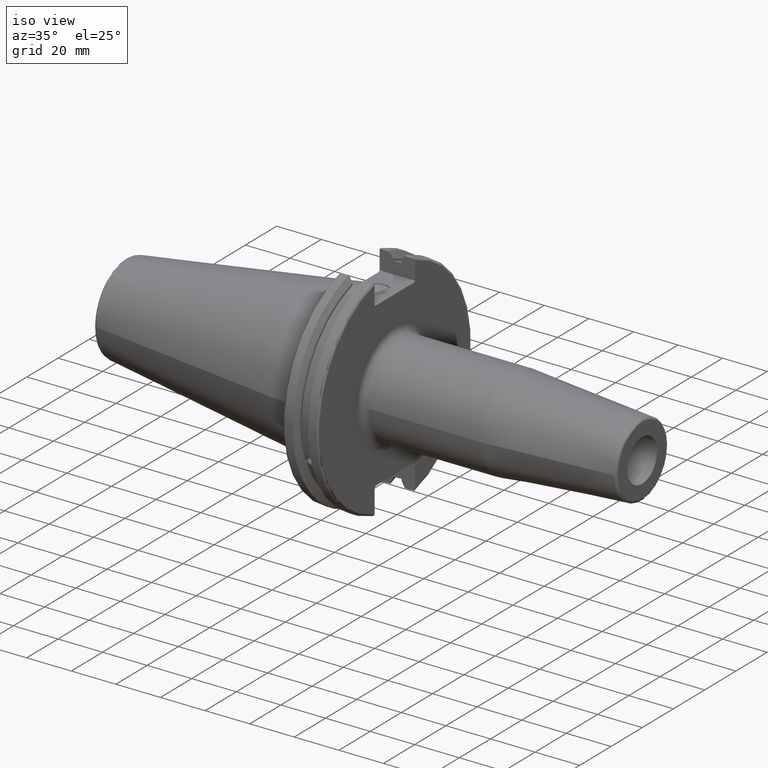
[diagram: clean part render]
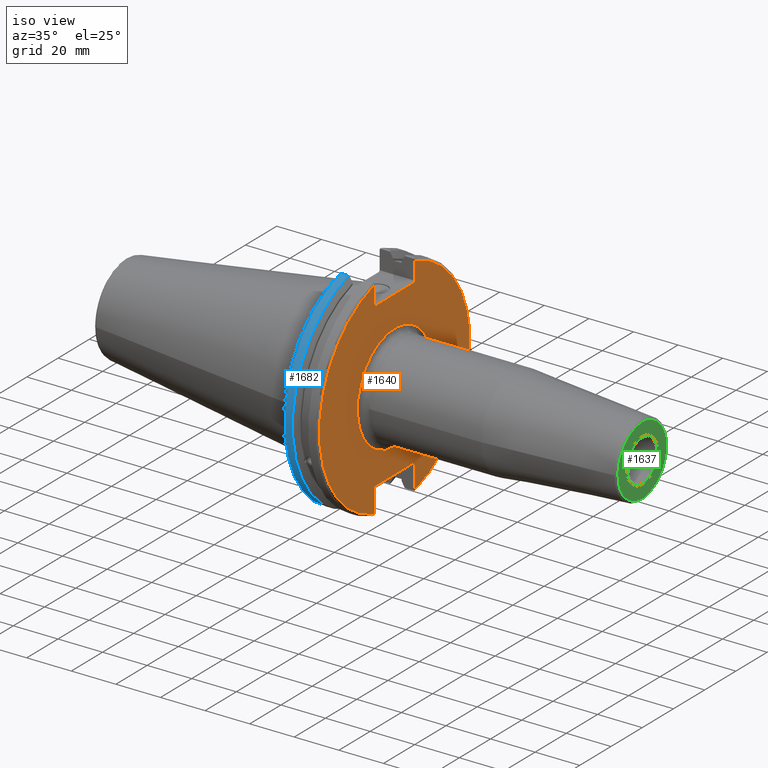
[diagram: same view with three faces highlighted in distinct colors, each labeled with its STEP entity id]
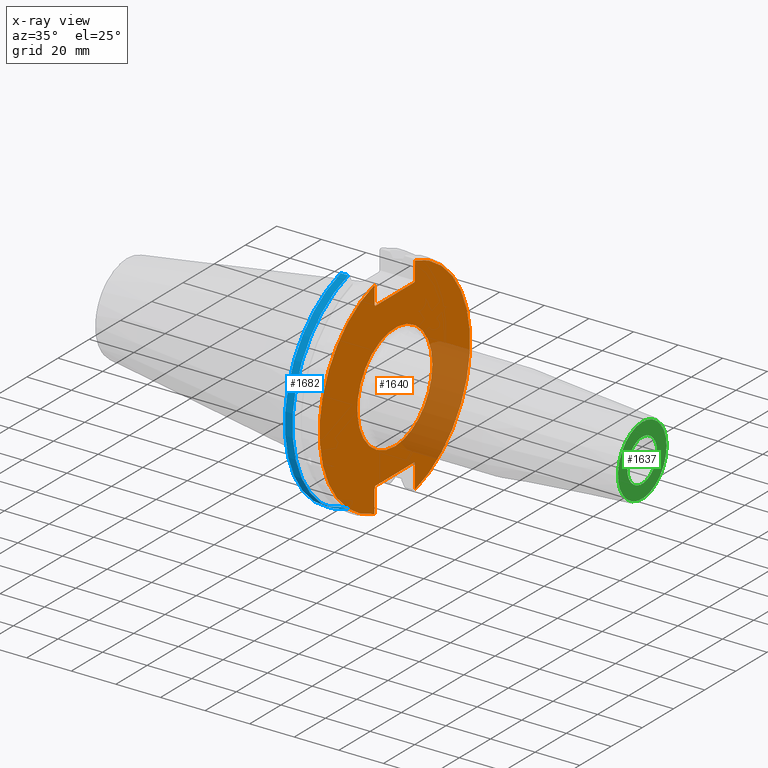
[diagram: x-ray of the same camera — body ghosted, the three highlighted faces saturated]
A machine part, iso view with three faces highlighted in distinct colors.
The next image is the same camera in x-ray (body ghosted, the three faces saturated) — at least one of them is partly hidden behind the body in this view.
Their STEP definitions:

[orange] entity #1640 — the highlighted planar face has unit normal (1, 0, 0).
#34=PLANE('',#1773);
#95=FACE_BOUND('',#251,.T.);
#160=FACE_OUTER_BOUND('',#250,.T.);
#250=EDGE_LOOP('',(#1147,#1148,#1149,#1150,#1151,#1152,#1153,#1154,#1155,
#1156,#1157,#1158));
#251=EDGE_LOOP('',(#1159,#1160));
#351=LINE('',#2576,#445);
#352=LINE('',#2578,#446);
#353=LINE('',#2580,#447);
#354=LINE('',#2582,#448);
#355=LINE('',#2584,#449);
#356=LINE('',#2588,#450);
#357=LINE('',#2590,#451);
#358=LINE('',#2592,#452);
#359=LINE('',#2594,#453);
#360=LINE('',#2595,#454);
#445=VECTOR('',#2020,10.);
#446=VECTOR('',#2021,10.);
#447=VECTOR('',#2022,10.);
#448=VECTOR('',#2023,10.);
#449=VECTOR('',#2024,10.);
#450=VECTOR('',#2027,10.);
#451=VECTOR('',#2028,10.);
#452=VECTOR('',#2029,10.);
#453=VECTOR('',#2030,10.);
#454=VECTOR('',#2031,10.);
#554=CIRCLE('',#1768,24.);
#555=CIRCLE('',#1769,24.);
#558=CIRCLE('',#1774,48.2125);
#559=CIRCLE('',#1775,48.2125);
#666=VERTEX_POINT('',#2561);
#667=VERTEX_POINT('',#2563);
#669=VERTEX_POINT('',#2572);
#670=VERTEX_POINT('',#2573);
#671=VERTEX_POINT('',#2575);
#672=VERTEX_POINT('',#2577);
#673=VERTEX_POINT('',#2579);
#674=VERTEX_POINT('',#2581);
#675=VERTEX_POINT('',#2583);
#676=VERTEX_POINT('',#2585);
#677=VERTEX_POINT('',#2587);
#678=VERTEX_POINT('',#2589);
#679=VERTEX_POINT('',#2591);
#680=VERTEX_POINT('',#2593);
#857=EDGE_CURVE('',#666,#667,#554,.T.);
#858=EDGE_CURVE('',#667,#666,#555,.T.);
#862=EDGE_CURVE('',#669,#670,#558,.T.);
#863=EDGE_CURVE('',#669,#671,#351,.T.);
#864=EDGE_CURVE('',#672,#671,#352,.T.);
#865=EDGE_CURVE('',#672,#673,#353,.T.);
#866=EDGE_CURVE('',#674,#673,#354,.T.);
#867=EDGE_CURVE('',#674,#675,#355,.T.);
#868=EDGE_CURVE('',#676,#675,#559,.T.);
#869=EDGE_CURVE('',#676,#677,#356,.T.);
#870=EDGE_CURVE('',#678,#677,#357,.T.);
#871=EDGE_CURVE('',#678,#679,#358,.T.);
#872=EDGE_CURVE('',#680,#679,#359,.T.);
#873=EDGE_CURVE('',#680,#670,#360,.T.);
#1147=ORIENTED_EDGE('',*,*,#862,.F.);
#1148=ORIENTED_EDGE('',*,*,#863,.T.);
#1149=ORIENTED_EDGE('',*,*,#864,.F.);
#1150=ORIENTED_EDGE('',*,*,#865,.T.);
#1151=ORIENTED_EDGE('',*,*,#866,.F.);
#1152=ORIENTED_EDGE('',*,*,#867,.T.);
#1153=ORIENTED_EDGE('',*,*,#868,.F.);
#1154=ORIENTED_EDGE('',*,*,#869,.T.);
#1155=ORIENTED_EDGE('',*,*,#870,.F.);
#1156=ORIENTED_EDGE('',*,*,#871,.T.);
#1157=ORIENTED_EDGE('',*,*,#872,.F.);
#1158=ORIENTED_EDGE('',*,*,#873,.T.);
#1159=ORIENTED_EDGE('',*,*,#858,.F.);
#1160=ORIENTED_EDGE('',*,*,#857,.F.);
#1640=ADVANCED_FACE('',(#160,#95),#34,.T.);
#1768=AXIS2_PLACEMENT_3D('',#2564,#2005,#2006);
#1769=AXIS2_PLACEMENT_3D('',#2565,#2007,#2008);
#1773=AXIS2_PLACEMENT_3D('',#2571,#2016,#2017);
#1774=AXIS2_PLACEMENT_3D('',#2574,#2018,#2019);
#1775=AXIS2_PLACEMENT_3D('',#2586,#2025,#2026);
#2005=DIRECTION('center_axis',(1.,0.,0.));
#2006=DIRECTION('ref_axis',(0.,-1.,-1.22464679914735E-16));
#2007=DIRECTION('center_axis',(1.,0.,0.));
#2008=DIRECTION('ref_axis',(0.,-1.,-1.22464679914735E-16));
#2016=DIRECTION('center_axis',(1.,0.,0.));
#2017=DIRECTION('ref_axis',(0.,0.,-1.));
#2018=DIRECTION('center_axis',(-1.,0.,0.));
#2019=DIRECTION('ref_axis',(0.,1.,-6.12323399573677E-17));
#2020=DIRECTION('',(0.,0.,-1.));
#2021=DIRECTION('',(0.,0.707106781186549,0.707106781186546));
#2022=DIRECTION('',(0.,-1.,0.));
#2023=DIRECTION('',(0.,0.707106781186549,-0.707106781186546));
#2024=DIRECTION('',(0.,0.,1.));
#2025=DIRECTION('center_axis',(-1.,0.,0.));
#2026=DIRECTION('ref_axis',(0.,-1.,1.60812264967664E-16));
#2027=DIRECTION('',(0.,0.,1.));
#2028=DIRECTION('',(0.,-0.707106781186549,-0.707106781186546));
#2029=DIRECTION('',(0.,1.,0.));
#2030=DIRECTION('',(0.,-0.707106781186549,0.707106781186546));
#2031=DIRECTION('',(0.,0.,-1.));
#2561=CARTESIAN_POINT('',(19.05,-2.93915231795365E-15,-24.));
#2563=CARTESIAN_POINT('',(19.05,24.,5.8783046359073E-15));
#2564=CARTESIAN_POINT('Origin',(19.05,0.,0.));
#2565=CARTESIAN_POINT('Origin',(19.05,0.,0.));
#2571=CARTESIAN_POINT('Origin',(19.05,0.,0.));
#2572=CARTESIAN_POINT('',(19.05,12.95,46.4407434937254));
#2573=CARTESIAN_POINT('',(19.05,12.95,-46.4407434937254));
#2574=CARTESIAN_POINT('Origin',(19.05,0.,0.));
#2575=CARTESIAN_POINT('',(19.05,12.95,38.219));
#2576=CARTESIAN_POINT('',(19.05,12.95,18.8595));
#2577=CARTESIAN_POINT('',(19.05,12.45,37.719));
#2578=CARTESIAN_POINT('',(19.05,0.0327499999999836,25.30175));
#2579=CARTESIAN_POINT('',(19.05,-12.45,37.719));
#2580=CARTESIAN_POINT('',(19.05,0.,37.719));
#2581=CARTESIAN_POINT('',(19.05,-12.95,38.219));
#2582=CARTESIAN_POINT('',(19.05,-0.0327499999999817,25.30175));
#2583=CARTESIAN_POINT('',(19.05,-12.95,46.4407434937254));
#2584=CARTESIAN_POINT('',(19.05,-12.95,18.8595));
#2585=CARTESIAN_POINT('',(19.05,-12.95,-46.4407434937254));
#2586=CARTESIAN_POINT('Origin',(19.05,0.,0.));
#2587=CARTESIAN_POINT('',(19.05,-12.95,-35.806));
#2588=CARTESIAN_POINT('',(19.05,-12.95,-17.653));
#2589=CARTESIAN_POINT('',(19.05,-12.45,-35.306));
#2590=CARTESIAN_POINT('',(19.05,-0.635999999999989,-23.492));
#2591=CARTESIAN_POINT('',(19.05,12.45,-35.306));
#2592=CARTESIAN_POINT('',(19.05,-3.33066907387547E-15,-35.306));
#2593=CARTESIAN_POINT('',(19.05,12.95,-35.806));
#2594=CARTESIAN_POINT('',(19.05,0.635999999999982,-23.492));
#2595=CARTESIAN_POINT('',(19.05,12.95,-17.653));

[blue] entity #1682 — the highlighted cylindrical surface (partial cylindrical patch) has radius 49.2125 mm, axis along (1, 0, 0).
#202=FACE_OUTER_BOUND('',#306,.T.);
#306=EDGE_LOOP('',(#1428,#1429,#1430,#1431));
#415=LINE('',#3284,#509);
#416=LINE('',#3290,#510);
#509=VECTOR('',#2280,10.);
#510=VECTOR('',#2283,10.);
#613=CIRCLE('',#1871,49.2125);
#614=CIRCLE('',#1874,49.2125);
#795=VERTEX_POINT('',#3263);
#796=VERTEX_POINT('',#3272);
#797=VERTEX_POINT('',#3283);
#798=VERTEX_POINT('',#3289);
#1025=EDGE_CURVE('',#795,#796,#613,.T.);
#1027=EDGE_CURVE('',#796,#797,#415,.T.);
#1029=EDGE_CURVE('',#798,#795,#416,.T.);
#1030=EDGE_CURVE('',#797,#798,#614,.T.);
#1428=ORIENTED_EDGE('',*,*,#1025,.F.);
#1429=ORIENTED_EDGE('',*,*,#1029,.F.);
#1430=ORIENTED_EDGE('',*,*,#1030,.F.);
#1431=ORIENTED_EDGE('',*,*,#1027,.F.);
#1622=CYLINDRICAL_SURFACE('',#1873,49.2125);
#1682=ADVANCED_FACE('',(#202),#1622,.T.);
#1871=AXIS2_PLACEMENT_3D('',#3273,#2276,#2277);
#1873=AXIS2_PLACEMENT_3D('',#3288,#2281,#2282);
#1874=AXIS2_PLACEMENT_3D('',#3291,#2284,#2285);
#2276=DIRECTION('center_axis',(-1.,0.,0.));
#2277=DIRECTION('ref_axis',(0.,-1.,1.60812264967664E-16));
#2280=DIRECTION('',(1.,0.,0.));
#2281=DIRECTION('center_axis',(1.,0.,0.));
#2282=DIRECTION('ref_axis',(0.,-1.,1.22464679914735E-16));
#2283=DIRECTION('',(-1.,0.,0.));
#2284=DIRECTION('center_axis',(1.,0.,0.));
#2285=DIRECTION('ref_axis',(0.,0.,-1.));
#3263=CARTESIAN_POINT('',(4.175,-13.4317035994433,-47.3440544806494));
#3272=CARTESIAN_POINT('',(4.175,-13.4317035994433,47.3440544806494));
#3273=CARTESIAN_POINT('Origin',(4.175,0.,0.));
#3283=CARTESIAN_POINT('',(7.60799096595127,-13.4317035994433,47.3440544806494));
#3284=CARTESIAN_POINT('',(5.39149548297563,-13.4317035994433,47.3440544806494));
#3288=CARTESIAN_POINT('Origin',(5.39149548297563,0.,0.));
#3289=CARTESIAN_POINT('',(7.60799096595127,-13.4317035994433,-47.3440544806494));
#3290=CARTESIAN_POINT('',(5.39149548297563,-13.4317035994433,-47.3440544806494));
#3291=CARTESIAN_POINT('Origin',(7.60799096595127,0.,0.));

[green] entity #1637 — the highlighted planar face has unit normal (1, 0, 0).
#33=PLANE('',#1762);
#94=FACE_BOUND('',#247,.T.);
#157=FACE_OUTER_BOUND('',#246,.T.);
#246=EDGE_LOOP('',(#1129,#1130));
#247=EDGE_LOOP('',(#1131,#1132));
#542=CIRCLE('',#1753,15.5756095083418);
#547=CIRCLE('',#1758,15.5756095083418);
#550=CIRCLE('',#1763,9.525);
#551=CIRCLE('',#1764,9.525);
#655=VERTEX_POINT('',#2535);
#656=VERTEX_POINT('',#2536);
#662=VERTEX_POINT('',#2553);
#663=VERTEX_POINT('',#2554);
#844=EDGE_CURVE('',#655,#656,#542,.T.);
#849=EDGE_CURVE('',#656,#655,#547,.T.);
#853=EDGE_CURVE('',#662,#663,#550,.T.);
#854=EDGE_CURVE('',#663,#662,#551,.T.);
#1129=ORIENTED_EDGE('',*,*,#844,.F.);
#1130=ORIENTED_EDGE('',*,*,#849,.F.);
#1131=ORIENTED_EDGE('',*,*,#853,.F.);
#1132=ORIENTED_EDGE('',*,*,#854,.F.);
#1637=ADVANCED_FACE('',(#157,#94),#33,.T.);
#1753=AXIS2_PLACEMENT_3D('',#2537,#1974,#1975);
#1758=AXIS2_PLACEMENT_3D('',#2545,#1984,#1985);
#1762=AXIS2_PLACEMENT_3D('',#2552,#1993,#1994);
#1763=AXIS2_PLACEMENT_3D('',#2555,#1995,#1996);
#1764=AXIS2_PLACEMENT_3D('',#2556,#1997,#1998);
#1974=DIRECTION('center_axis',(-1.,0.,0.));
#1975=DIRECTION('ref_axis',(0.,-1.,1.83697019872103E-16));
#1984=DIRECTION('center_axis',(-1.,0.,0.));
#1985=DIRECTION('ref_axis',(0.,-1.,1.83697019872103E-16));
#1993=DIRECTION('center_axis',(1.,0.,0.));
#1994=DIRECTION('ref_axis',(0.,0.,-1.));
#1995=DIRECTION('center_axis',(1.,0.,0.));
#1996=DIRECTION('ref_axis',(0.,0.,-1.));
#1997=DIRECTION('center_axis',(1.,0.,0.));
#1998=DIRECTION('ref_axis',(0.,0.,-1.));
#2535=CARTESIAN_POINT('',(130.,15.5756095083418,-4.76865508228996E-15));
#2536=CARTESIAN_POINT('',(130.,-1.90746203291599E-15,15.5756095083418));
#2537=CARTESIAN_POINT('Origin',(130.,0.,0.));
#2545=CARTESIAN_POINT('Origin',(130.,0.,0.));
#2552=CARTESIAN_POINT('Origin',(130.,9.525,0.));
#2553=CARTESIAN_POINT('',(130.,9.525,0.));
#2554=CARTESIAN_POINT('',(130.,-9.525,-1.16647607618785E-15));
#2555=CARTESIAN_POINT('Origin',(130.,0.,0.));
#2556=CARTESIAN_POINT('Origin',(130.,0.,0.));